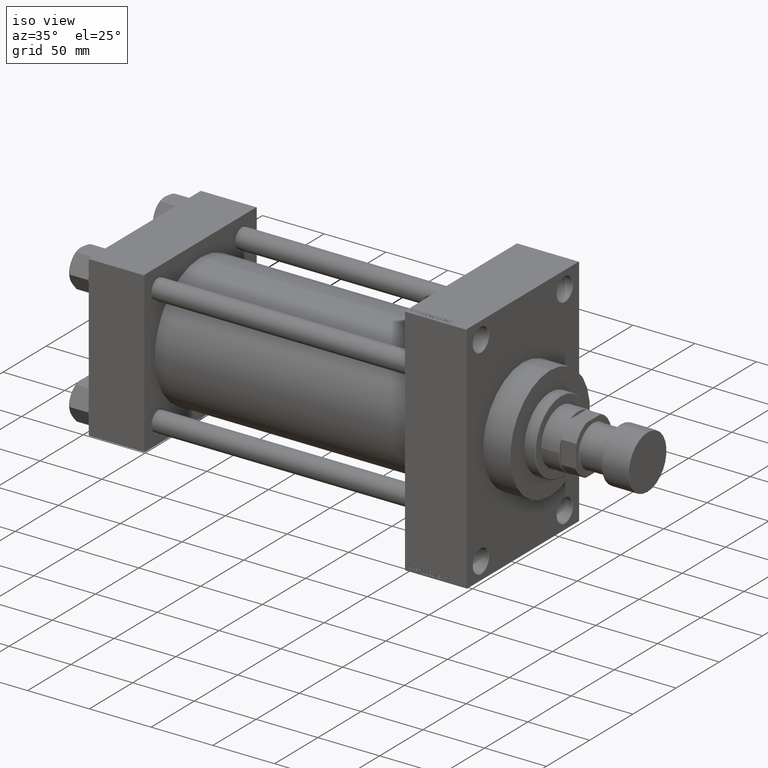
[diagram: clean part render]
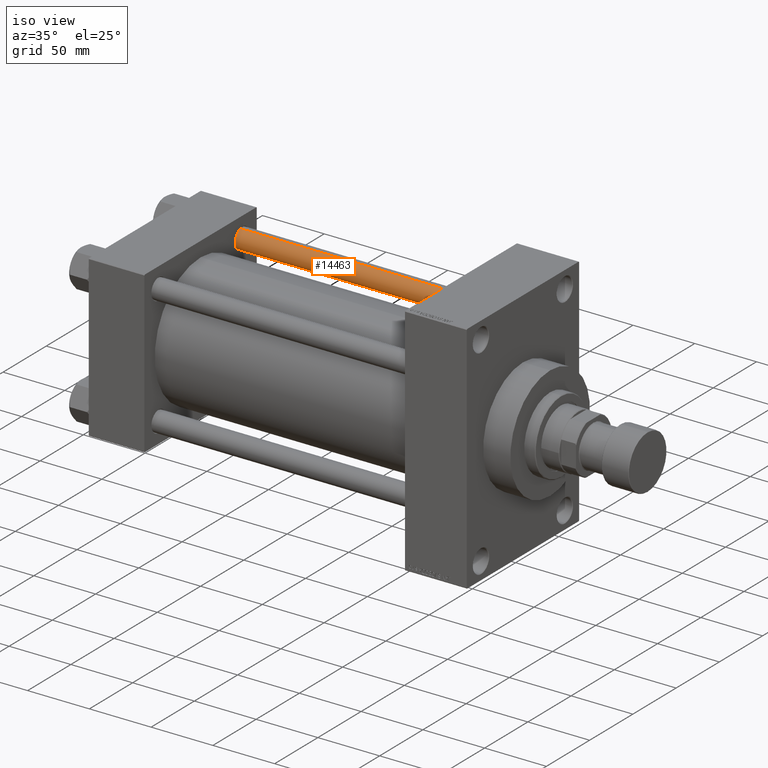
[diagram: same view with one face highlighted and labeled with its STEP entity id]
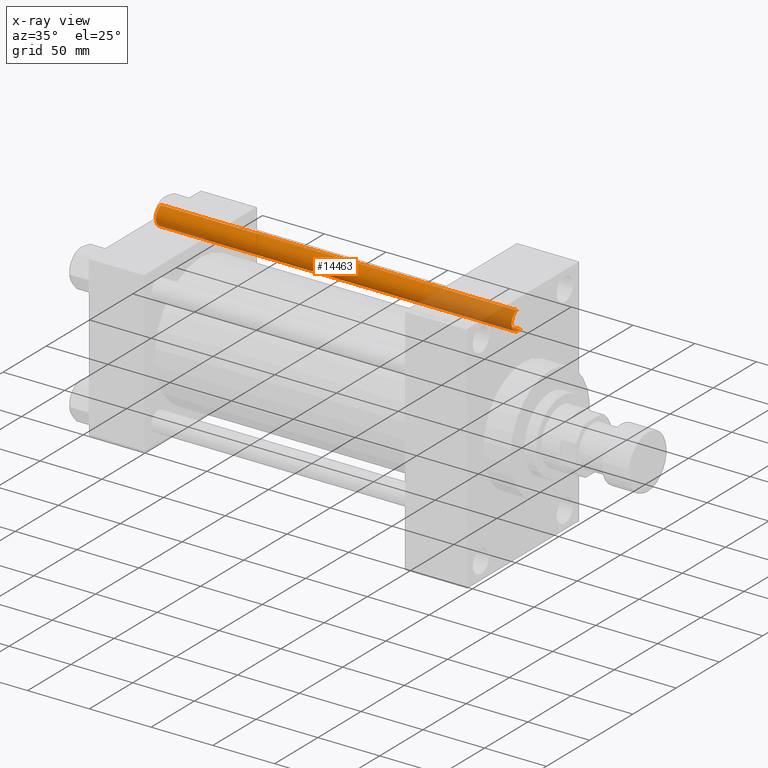
[diagram: x-ray of the same camera — body ghosted, the highlighted face saturated]
A machine part, iso view. The second image highlights one B-rep face of the part: STEP entity #14463.
The next image is the same camera in x-ray: the body ghosted, the highlighted face saturated — about 25% of this face is hidden behind the body in this view.
In plain terms, the highlighted cylindrical surface (edge-blend (fillet) strip) has radius 8 mm, axis along (-1, -0, 0).
Its self-contained STEP definition (entity closure, byte-faithful):
#1399 = VERTEX_POINT ( 'NONE', #30977 ) ;
#2392 = CIRCLE ( 'NONE', #20276, 8.000000000000000000 ) ;
#3208 = CIRCLE ( 'NONE', #5702, 8.000000000000000000 ) ;
#3437 = DIRECTION ( 'NONE',  ( 1.000000000000000000, 0.000000000000000000, 0.000000000000000000 ) ) ;
#4113 = ORIENTED_EDGE ( 'NONE', *, *, #35111, .T. ) ;
#4832 = EDGE_LOOP ( 'NONE', ( #12932, #17811, #4113, #31128 ) ) ;
#5702 = AXIS2_PLACEMENT_3D ( 'NONE', #7097, #36762, #3437 ) ;
#6038 = CARTESIAN_POINT ( 'NONE',  ( -8.000000000000000000, 0.000000000000000000, 289.0000000000000000 ) ) ;
#7097 = CARTESIAN_POINT ( 'NONE',  ( 0.000000000000000000, 0.000000000000000000, 288.5000000000000000 ) ) ;
#7101 = VECTOR ( 'NONE', #20627, 1000.000000000000000 ) ;
#8555 = DIRECTION ( 'NONE',  ( -0.000000000000000000, -0.000000000000000000, 1.000000000000000000 ) ) ;
#9440 = LINE ( 'NONE', #27438, #7101 ) ;
#9933 = DIRECTION ( 'NONE',  ( -0.000000000000000000, -0.000000000000000000, -1.000000000000000000 ) ) ;
#10658 = DIRECTION ( 'NONE',  ( -1.000000000000000000, 0.000000000000000000, 0.000000000000000000 ) ) ;
#12458 = AXIS2_PLACEMENT_3D ( 'NONE', #18932, #37631, #10658 ) ;
#12932 = ORIENTED_EDGE ( 'NONE', *, *, #20057, .F. ) ;
#14463 = ADVANCED_FACE ( 'NONE', ( #33741 ), #40555, .T. ) ;
#17811 = ORIENTED_EDGE ( 'NONE', *, *, #20760, .T. ) ;
#18932 = CARTESIAN_POINT ( 'NONE',  ( 0.000000000000000000, 0.000000000000000000, 289.0000000000000000 ) ) ;
#19448 = CARTESIAN_POINT ( 'NONE',  ( 8.000000000000000000, 9.797174393178825657E-16, 0.5000000000000004441 ) ) ;
#20057 = EDGE_CURVE ( 'NONE', #46638, #29151, #9440, .T. ) ;
#20276 = AXIS2_PLACEMENT_3D ( 'NONE', #23154, #8555, #27765 ) ;
#20627 = DIRECTION ( 'NONE',  ( -0.000000000000000000, -0.000000000000000000, -1.000000000000000000 ) ) ;
#20760 = EDGE_CURVE ( 'NONE', #46638, #28928, #3208, .T. ) ;
#22636 = EDGE_CURVE ( 'NONE', #1399, #29151, #2392, .T. ) ;
#23154 = CARTESIAN_POINT ( 'NONE',  ( 0.000000000000000000, 0.000000000000000000, 0.5000000000000004441 ) ) ;
#24353 = CARTESIAN_POINT ( 'NONE',  ( -8.000000000000000000, 0.000000000000000000, 288.5000000000000000 ) ) ;
#25719 = LINE ( 'NONE', #6038, #37653 ) ;
#27438 = CARTESIAN_POINT ( 'NONE',  ( 8.000000000000000000, 9.797174393178825657E-16, 289.0000000000000000 ) ) ;
#27765 = DIRECTION ( 'NONE',  ( 1.000000000000000000, 0.000000000000000000, 0.000000000000000000 ) ) ;
#28928 = VERTEX_POINT ( 'NONE', #24353 ) ;
#29151 = VERTEX_POINT ( 'NONE', #19448 ) ;
#30977 = CARTESIAN_POINT ( 'NONE',  ( -8.000000000000000000, 0.000000000000000000, 0.5000000000000004441 ) ) ;
#31128 = ORIENTED_EDGE ( 'NONE', *, *, #22636, .T. ) ;
#33741 = FACE_OUTER_BOUND ( 'NONE', #4832, .T. ) ;
#35111 = EDGE_CURVE ( 'NONE', #28928, #1399, #25719, .T. ) ;
#36762 = DIRECTION ( 'NONE',  ( 0.000000000000000000, 0.000000000000000000, -1.000000000000000000 ) ) ;
#37429 = CARTESIAN_POINT ( 'NONE',  ( 8.000000000000000000, 9.797174393178825657E-16, 288.5000000000000000 ) ) ;
#37631 = DIRECTION ( 'NONE',  ( -0.000000000000000000, -0.000000000000000000, -1.000000000000000000 ) ) ;
#37653 = VECTOR ( 'NONE', #9933, 1000.000000000000000 ) ;
#40555 = CYLINDRICAL_SURFACE ( 'NONE', #12458, 8.000000000000000000 ) ;
#46638 = VERTEX_POINT ( 'NONE', #37429 ) ;